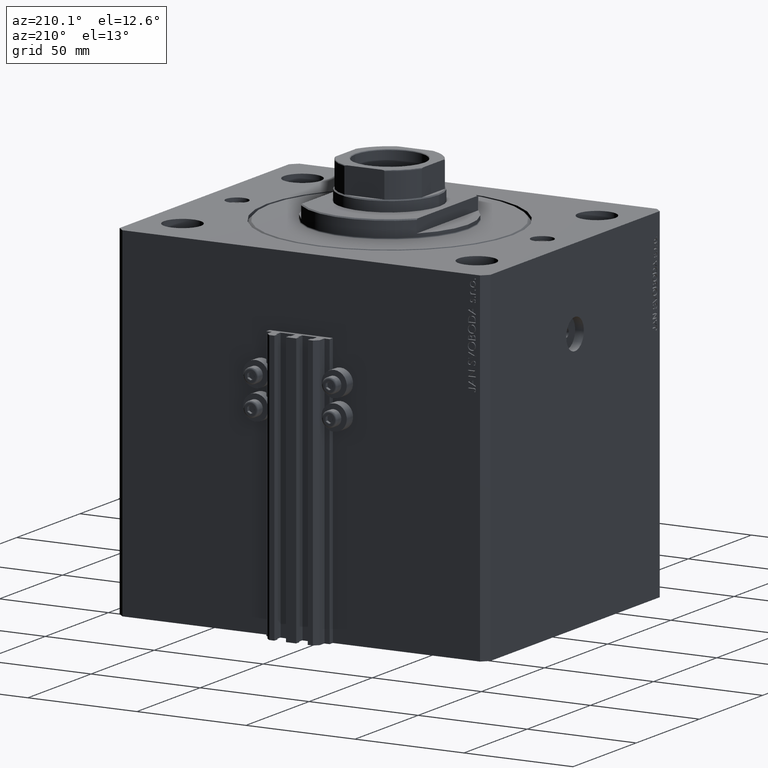
[diagram: clean part render]
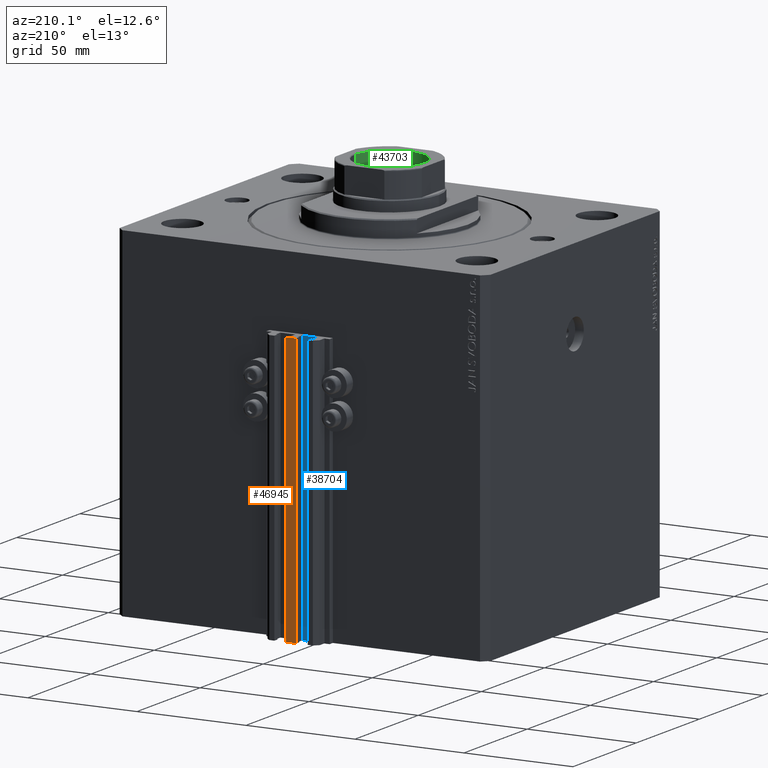
[diagram: same view with three faces highlighted in distinct colors, each labeled with its STEP entity id]
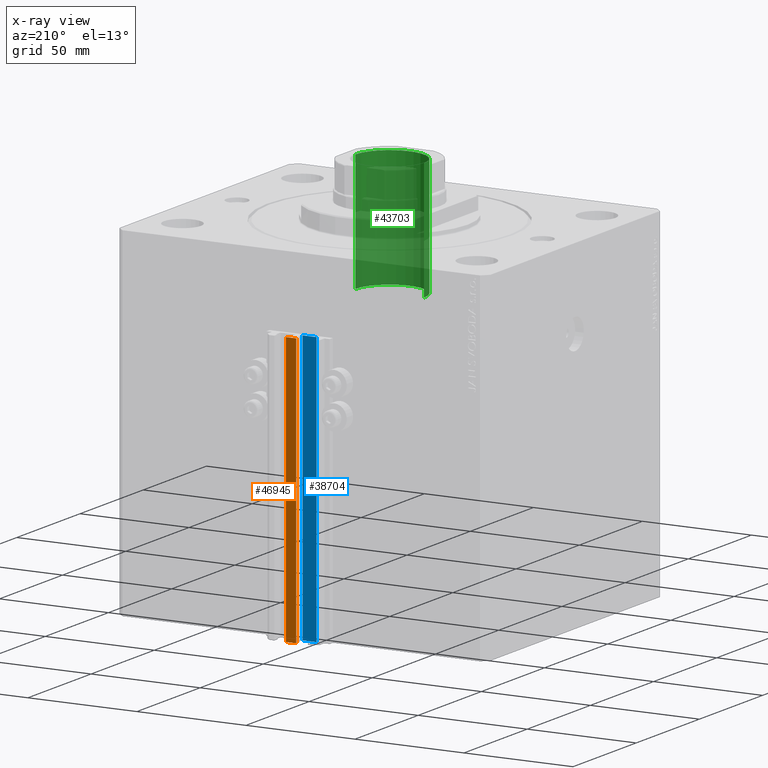
[diagram: x-ray of the same camera — body ghosted, the three highlighted faces saturated]
A machine part, auxiliary view with three faces highlighted in distinct colors.
The next image is the same camera in x-ray (body ghosted, the three faces saturated) — at least one of them is partly hidden behind the body in this view.
Their STEP definitions:

[orange] entity #46945 — the highlighted planar face has unit normal (0, -1, 0).
#524 = VECTOR ( 'NONE', #19312, 1000.000000000000000 ) ;
#925 = VERTEX_POINT ( 'NONE', #34442 ) ;
#1982 = FACE_OUTER_BOUND ( 'NONE', #26157, .T. ) ;
#5509 = CARTESIAN_POINT ( 'NONE',  ( -2.350000000000003642, 78.00000000000001421, -33.00000000000000000 ) ) ;
#6662 = CARTESIAN_POINT ( 'NONE',  ( 2.349999999999999645, 78.00000000000001421, -157.0000000000000000 ) ) ;
#8527 = LINE ( 'NONE', #14580, #36393 ) ;
#10092 = EDGE_CURVE ( 'NONE', #19949, #925, #13843, .T. ) ;
#12164 = CARTESIAN_POINT ( 'NONE',  ( -2.350000000000003642, 78.00000000000001421, -157.0000000000000000 ) ) ;
#12592 = DIRECTION ( 'NONE',  ( 0.000000000000000000, 0.000000000000000000, 1.000000000000000000 ) ) ;
#13843 = LINE ( 'NONE', #6662, #28539 ) ;
#14580 = CARTESIAN_POINT ( 'NONE',  ( -2.350000000000003642, 78.00000000000001421, -33.00000000000000000 ) ) ;
#15570 = EDGE_CURVE ( 'NONE', #40286, #19949, #29608, .T. ) ;
#16554 = DIRECTION ( 'NONE',  ( 0.000000000000000000, -1.000000000000000000, 0.000000000000000000 ) ) ;
#19312 = DIRECTION ( 'NONE',  ( 1.000000000000000000, 0.000000000000000000, 0.000000000000000000 ) ) ;
#19949 = VERTEX_POINT ( 'NONE', #25714 ) ;
#21090 = ORIENTED_EDGE ( 'NONE', *, *, #10092, .F. ) ;
#21579 = EDGE_CURVE ( 'NONE', #32112, #925, #8527, .T. ) ;
#21712 = EDGE_CURVE ( 'NONE', #40286, #32112, #34318, .T. ) ;
#25365 = AXIS2_PLACEMENT_3D ( 'NONE', #27745, #16554, #31348 ) ;
#25714 = CARTESIAN_POINT ( 'NONE',  ( 2.349999999999999645, 78.00000000000001421, -157.0000000000000000 ) ) ;
#26157 = EDGE_LOOP ( 'NONE', ( #36169, #21090, #26812, #26754 ) ) ;
#26754 = ORIENTED_EDGE ( 'NONE', *, *, #21712, .T. ) ;
#26812 = ORIENTED_EDGE ( 'NONE', *, *, #15570, .F. ) ;
#26870 = DIRECTION ( 'NONE',  ( 0.000000000000000000, 0.000000000000000000, 1.000000000000000000 ) ) ;
#27745 = CARTESIAN_POINT ( 'NONE',  ( -2.350000000000003642, 78.00000000000001421, -157.0000000000000000 ) ) ;
#28539 = VECTOR ( 'NONE', #26870, 1000.000000000000000 ) ;
#29150 = CARTESIAN_POINT ( 'NONE',  ( -2.350000000000003642, 78.00000000000001421, -157.0000000000000000 ) ) ;
#29608 = LINE ( 'NONE', #12164, #524 ) ;
#30746 = CARTESIAN_POINT ( 'NONE',  ( -2.350000000000003642, 78.00000000000001421, -157.0000000000000000 ) ) ;
#31348 = DIRECTION ( 'NONE',  ( 0.000000000000000000, -0.000000000000000000, -1.000000000000000000 ) ) ;
#32112 = VERTEX_POINT ( 'NONE', #5509 ) ;
#34318 = LINE ( 'NONE', #30746, #44886 ) ;
#34442 = CARTESIAN_POINT ( 'NONE',  ( 2.349999999999999645, 78.00000000000001421, -33.00000000000000000 ) ) ;
#36169 = ORIENTED_EDGE ( 'NONE', *, *, #21579, .T. ) ;
#36393 = VECTOR ( 'NONE', #44576, 1000.000000000000000 ) ;
#38489 = PLANE ( 'NONE',  #25365 ) ;
#40286 = VERTEX_POINT ( 'NONE', #29150 ) ;
#44576 = DIRECTION ( 'NONE',  ( 1.000000000000000000, 0.000000000000000000, 0.000000000000000000 ) ) ;
#44886 = VECTOR ( 'NONE', #12592, 1000.000000000000000 ) ;
#46945 = ADVANCED_FACE ( 'NONE', ( #1982 ), #38489, .F. ) ;

[blue] entity #38704 — the highlighted planar face has unit normal (0, 1, 0).
#155 = CARTESIAN_POINT ( 'NONE',  ( -1.800000000000000933, 72.00000000000001421, -157.0000000000000000 ) ) ;
#1883 = DIRECTION ( 'NONE',  ( 0.000000000000000000, 0.000000000000000000, 1.000000000000000000 ) ) ;
#2482 = LINE ( 'NONE', #38757, #38278 ) ;
#3123 = ORIENTED_EDGE ( 'NONE', *, *, #25548, .F. ) ;
#3275 = ORIENTED_EDGE ( 'NONE', *, *, #11159, .T. ) ;
#5138 = VERTEX_POINT ( 'NONE', #10393 ) ;
#8338 = DIRECTION ( 'NONE',  ( -1.000000000000000000, 0.000000000000000000, 0.000000000000000000 ) ) ;
#9133 = VERTEX_POINT ( 'NONE', #43116 ) ;
#9285 = LINE ( 'NONE', #38852, #39991 ) ;
#9416 = DIRECTION ( 'NONE',  ( -1.000000000000000000, 0.000000000000000000, 0.000000000000000000 ) ) ;
#10393 = CARTESIAN_POINT ( 'NONE',  ( -8.199999999999997513, 72.00000000000001421, -33.00000000000000000 ) ) ;
#11159 = EDGE_CURVE ( 'NONE', #9133, #5138, #9285, .T. ) ;
#11211 = CARTESIAN_POINT ( 'NONE',  ( -1.800000000000000933, 72.00000000000001421, -157.0000000000000000 ) ) ;
#12943 = VECTOR ( 'NONE', #8338, 1000.000000000000000 ) ;
#13295 = PLANE ( 'NONE',  #32765 ) ;
#13397 = CARTESIAN_POINT ( 'NONE',  ( -1.800000000000000933, 72.00000000000001421, -33.00000000000000000 ) ) ;
#13759 = DIRECTION ( 'NONE',  ( 0.000000000000000000, 0.000000000000000000, 1.000000000000000000 ) ) ;
#16987 = ORIENTED_EDGE ( 'NONE', *, *, #37447, .T. ) ;
#19110 = CARTESIAN_POINT ( 'NONE',  ( -1.800000000000000933, 72.00000000000001421, -157.0000000000000000 ) ) ;
#24348 = VERTEX_POINT ( 'NONE', #13397 ) ;
#25430 = EDGE_LOOP ( 'NONE', ( #41585, #3123, #16987, #3275 ) ) ;
#25446 = DIRECTION ( 'NONE',  ( 0.000000000000000000, 0.000000000000000000, 1.000000000000000000 ) ) ;
#25548 = EDGE_CURVE ( 'NONE', #28933, #24348, #40709, .T. ) ;
#26472 = LINE ( 'NONE', #11211, #12943 ) ;
#27845 = CARTESIAN_POINT ( 'NONE',  ( -1.800000000000000933, 72.00000000000001421, -157.0000000000000000 ) ) ;
#28933 = VERTEX_POINT ( 'NONE', #19110 ) ;
#31425 = VECTOR ( 'NONE', #25446, 1000.000000000000000 ) ;
#32765 = AXIS2_PLACEMENT_3D ( 'NONE', #27845, #46461, #13759 ) ;
#37447 = EDGE_CURVE ( 'NONE', #28933, #9133, #26472, .T. ) ;
#38278 = VECTOR ( 'NONE', #9416, 1000.000000000000000 ) ;
#38704 = ADVANCED_FACE ( 'NONE', ( #45996 ), #13295, .T. ) ;
#38757 = CARTESIAN_POINT ( 'NONE',  ( -1.800000000000000933, 72.00000000000001421, -33.00000000000000000 ) ) ;
#38852 = CARTESIAN_POINT ( 'NONE',  ( -8.199999999999997513, 72.00000000000001421, -157.0000000000000000 ) ) ;
#39991 = VECTOR ( 'NONE', #1883, 1000.000000000000000 ) ;
#40709 = LINE ( 'NONE', #155, #31425 ) ;
#41585 = ORIENTED_EDGE ( 'NONE', *, *, #44264, .F. ) ;
#43116 = CARTESIAN_POINT ( 'NONE',  ( -8.199999999999997513, 72.00000000000001421, -157.0000000000000000 ) ) ;
#44264 = EDGE_CURVE ( 'NONE', #24348, #5138, #2482, .T. ) ;
#45996 = FACE_OUTER_BOUND ( 'NONE', #25430, .T. ) ;
#46461 = DIRECTION ( 'NONE',  ( 0.000000000000000000, 1.000000000000000000, -0.000000000000000000 ) ) ;

[green] entity #43703 — the highlighted cylindrical surface (partial cylindrical patch) has radius 15.75 mm, axis along (0, 0, 1).
#609 = VERTEX_POINT ( 'NONE', #10332 ) ;
#816 = ORIENTED_EDGE ( 'NONE', *, *, #42107, .T. ) ;
#1577 = FACE_OUTER_BOUND ( 'NONE', #6106, .T. ) ;
#3501 = EDGE_CURVE ( 'NONE', #609, #26485, #36097, .T. ) ;
#3951 = LINE ( 'NONE', #32617, #29075 ) ;
#5162 = DIRECTION ( 'NONE',  ( 1.000000000000000000, 0.000000000000000000, 0.000000000000000000 ) ) ;
#5845 = VERTEX_POINT ( 'NONE', #33367 ) ;
#6013 = ORIENTED_EDGE ( 'NONE', *, *, #31757, .F. ) ;
#6106 = EDGE_LOOP ( 'NONE', ( #6013, #816, #33846, #37079 ) ) ;
#7072 = DIRECTION ( 'NONE',  ( 1.000000000000000000, 0.000000000000000000, 0.000000000000000000 ) ) ;
#8509 = LINE ( 'NONE', #15209, #13447 ) ;
#10332 = CARTESIAN_POINT ( 'NONE',  ( -15.74999999999999289, 1.928818708657080556E-15, 152.7999999999999829 ) ) ;
#13447 = VECTOR ( 'NONE', #33819, 1000.000000000000000 ) ;
#14190 = EDGE_CURVE ( 'NONE', #39180, #26485, #8509, .T. ) ;
#14790 = CYLINDRICAL_SURFACE ( 'NONE', #25272, 15.74999999999999289 ) ;
#15209 = CARTESIAN_POINT ( 'NONE',  ( 15.74999999999999289, 0.000000000000000000, 153.1000000000000227 ) ) ;
#18517 = DIRECTION ( 'NONE',  ( -0.000000000000000000, -0.000000000000000000, 1.000000000000000000 ) ) ;
#20739 = CARTESIAN_POINT ( 'NONE',  ( 15.74999999999998934, 0.000000000000000000, 98.10000000000002274 ) ) ;
#21397 = CARTESIAN_POINT ( 'NONE',  ( 0.000000000000000000, 0.000000000000000000, 152.7999999999999829 ) ) ;
#23048 = DIRECTION ( 'NONE',  ( -0.000000000000000000, -0.000000000000000000, 1.000000000000000000 ) ) ;
#24968 = CARTESIAN_POINT ( 'NONE',  ( 15.74999999999999289, 0.000000000000000000, 152.7999999999999829 ) ) ;
#25272 = AXIS2_PLACEMENT_3D ( 'NONE', #29346, #23048, #5162 ) ;
#26485 = VERTEX_POINT ( 'NONE', #24968 ) ;
#26586 = CIRCLE ( 'NONE', #31924, 15.74999999999998934 ) ;
#29075 = VECTOR ( 'NONE', #39980, 1000.000000000000000 ) ;
#29346 = CARTESIAN_POINT ( 'NONE',  ( 0.000000000000000000, 0.000000000000000000, 153.1000000000000227 ) ) ;
#31560 = AXIS2_PLACEMENT_3D ( 'NONE', #21397, #39767, #7072 ) ;
#31757 = EDGE_CURVE ( 'NONE', #5845, #39180, #26586, .T. ) ;
#31924 = AXIS2_PLACEMENT_3D ( 'NONE', #40217, #18517, #36178 ) ;
#32617 = CARTESIAN_POINT ( 'NONE',  ( -15.74999999999999289, 1.928818708657080556E-15, 153.1000000000000227 ) ) ;
#33367 = CARTESIAN_POINT ( 'NONE',  ( -15.74999999999998934, 1.928818708657080161E-15, 98.10000000000002274 ) ) ;
#33819 = DIRECTION ( 'NONE',  ( -0.000000000000000000, -0.000000000000000000, 1.000000000000000000 ) ) ;
#33846 = ORIENTED_EDGE ( 'NONE', *, *, #3501, .T. ) ;
#36097 = CIRCLE ( 'NONE', #31560, 15.74999999999999289 ) ;
#36178 = DIRECTION ( 'NONE',  ( 1.000000000000000000, 0.000000000000000000, 0.000000000000000000 ) ) ;
#37079 = ORIENTED_EDGE ( 'NONE', *, *, #14190, .F. ) ;
#39180 = VERTEX_POINT ( 'NONE', #20739 ) ;
#39767 = DIRECTION ( 'NONE',  ( 0.000000000000000000, 0.000000000000000000, 1.000000000000000000 ) ) ;
#39980 = DIRECTION ( 'NONE',  ( -0.000000000000000000, -0.000000000000000000, 1.000000000000000000 ) ) ;
#40217 = CARTESIAN_POINT ( 'NONE',  ( 0.000000000000000000, 0.000000000000000000, 98.10000000000002274 ) ) ;
#42107 = EDGE_CURVE ( 'NONE', #5845, #609, #3951, .T. ) ;
#43703 = ADVANCED_FACE ( 'NONE', ( #1577 ), #14790, .F. ) ;